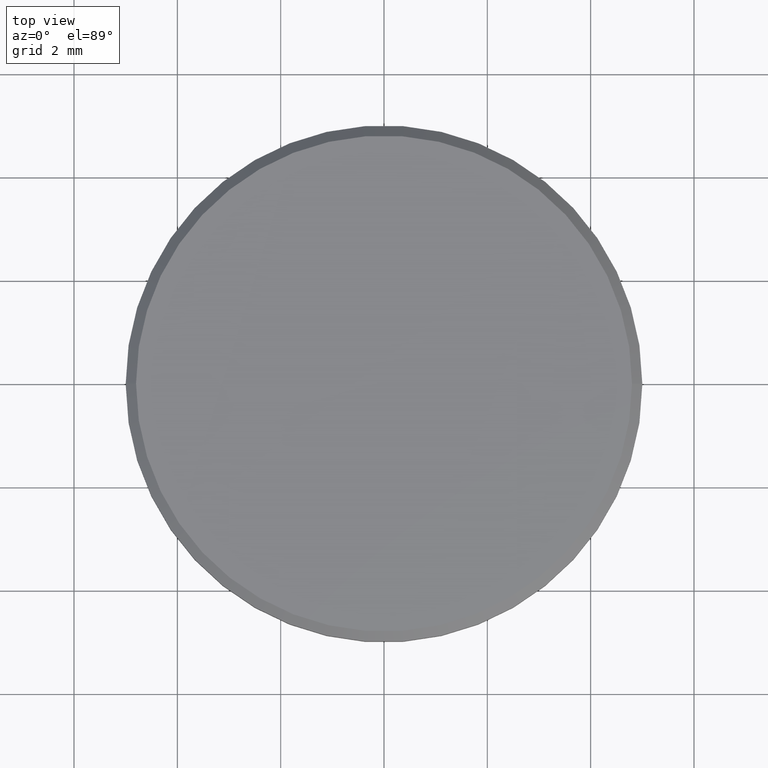
[diagram: clean part render]
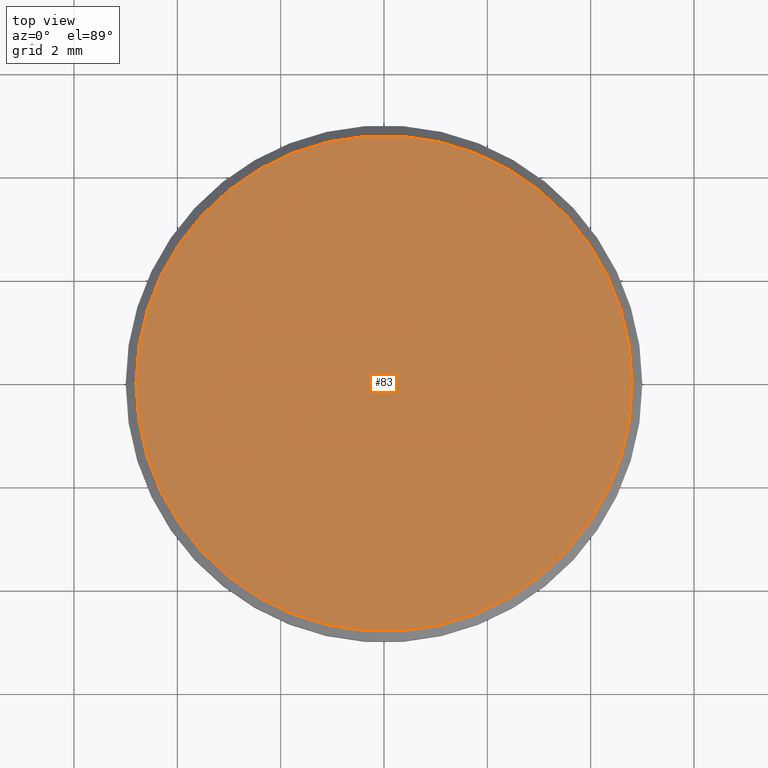
[diagram: same view with one face highlighted and labeled with its STEP entity id]
A machine part, top view. The second image highlights one B-rep face of the part: STEP entity #83.
In plain terms, the highlighted planar face has unit normal (0, 0, 1).
Its self-contained STEP definition (entity closure, byte-faithful):
#5 = AXIS2_PLACEMENT_3D ( 'NONE', #89, #106, #218 ) ;
#11 = FACE_OUTER_BOUND ( 'NONE', #175, .T. ) ;
#21 = AXIS2_PLACEMENT_3D ( 'NONE', #104, #74, #84 ) ;
#28 = ORIENTED_EDGE ( 'NONE', *, *, #188, .T. ) ;
#34 = DIRECTION ( 'NONE',  ( 0.000000000000000000, 0.000000000000000000, 1.000000000000000000 ) ) ;
#70 = EDGE_CURVE ( 'NONE', #229, #119, #95, .T. ) ;
#71 = CARTESIAN_POINT ( 'NONE',  ( -4.800000000000002487, 0.000000000000000000, 1.000000000000000000 ) ) ;
#74 = DIRECTION ( 'NONE',  ( 0.000000000000000000, 0.000000000000000000, 1.000000000000000000 ) ) ;
#83 = ADVANCED_FACE ( 'NONE', ( #11 ), #196, .T. ) ;
#84 = DIRECTION ( 'NONE',  ( 1.000000000000000000, 0.000000000000000000, -0.000000000000000000 ) ) ;
#89 = CARTESIAN_POINT ( 'NONE',  ( 0.000000000000000000, 0.000000000000000000, 1.000000000000000000 ) ) ;
#95 = CIRCLE ( 'NONE', #130, 4.800000000000002487 ) ;
#104 = CARTESIAN_POINT ( 'NONE',  ( 0.000000000000000000, 0.000000000000000000, 1.000000000000000000 ) ) ;
#105 = CARTESIAN_POINT ( 'NONE',  ( 0.000000000000000000, 0.000000000000000000, 1.000000000000000000 ) ) ;
#106 = DIRECTION ( 'NONE',  ( 0.000000000000000000, 0.000000000000000000, 1.000000000000000000 ) ) ;
#117 = CIRCLE ( 'NONE', #5, 4.800000000000002487 ) ;
#119 = VERTEX_POINT ( 'NONE', #71 ) ;
#130 = AXIS2_PLACEMENT_3D ( 'NONE', #105, #34, #144 ) ;
#144 = DIRECTION ( 'NONE',  ( 1.000000000000000000, 0.000000000000000000, 0.000000000000000000 ) ) ;
#157 = ORIENTED_EDGE ( 'NONE', *, *, #70, .T. ) ;
#167 = CARTESIAN_POINT ( 'NONE',  ( 4.800000000000002487, 6.000769315822031726E-16, 1.000000000000000000 ) ) ;
#175 = EDGE_LOOP ( 'NONE', ( #28, #157 ) ) ;
#188 = EDGE_CURVE ( 'NONE', #119, #229, #117, .T. ) ;
#196 = PLANE ( 'NONE',  #21 ) ;
#218 = DIRECTION ( 'NONE',  ( 1.000000000000000000, 0.000000000000000000, 0.000000000000000000 ) ) ;
#229 = VERTEX_POINT ( 'NONE', #167 ) ;